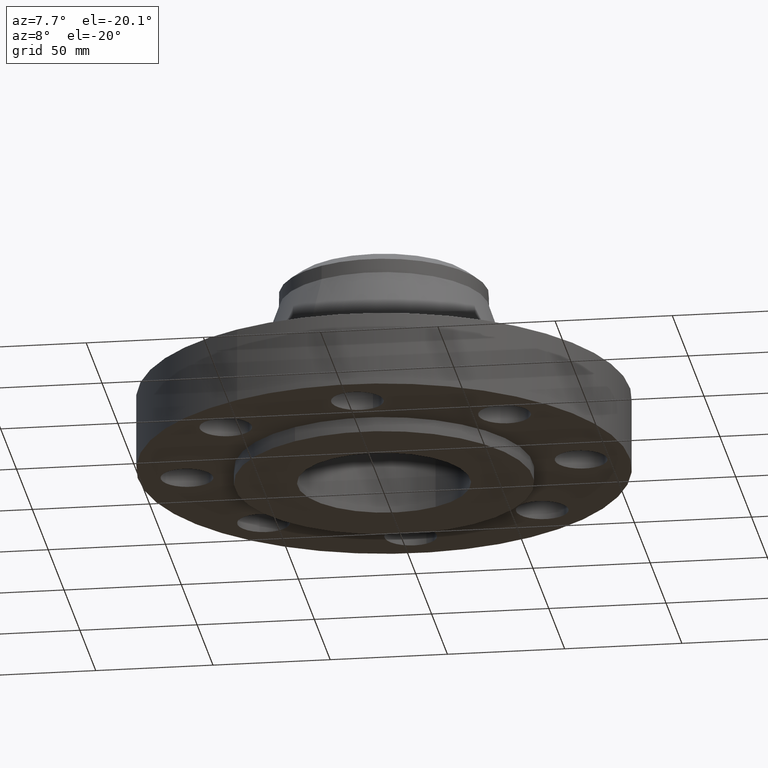
[diagram: clean part render]
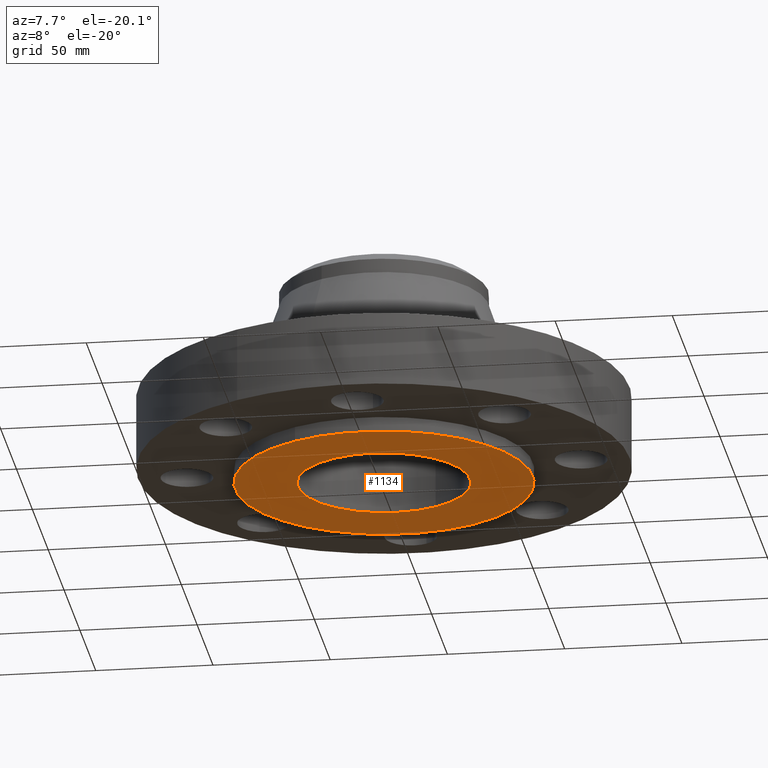
[diagram: same view with one face highlighted and labeled with its STEP entity id]
A machine part, auxiliary view. The second image highlights one B-rep face of the part: STEP entity #1134.
In plain terms, the highlighted planar face has unit normal (0, 0, -1).
Its self-contained STEP definition (entity closure, byte-faithful):
#617=AXIS2_PLACEMENT_3D('Circle Axis2P3D',#615,#616,$) ;
#1110=AXIS2_PLACEMENT_3D('Plane Axis2P3D',#1107,#1108,#1109) ;
#1118=AXIS2_PLACEMENT_3D('Circle Axis2P3D',#1116,#1117,$) ;
#1127=AXIS2_PLACEMENT_3D('Circle Axis2P3D',#1125,#1126,$) ;
#566=CARTESIAN_POINT('Control Point',(1.19856384652,2.19395640473,-0.250000000034)) ;
#567=CARTESIAN_POINT('Control Point',(1.54318971269,2.00568643598,-0.250000000032)) ;
#568=CARTESIAN_POINT('Control Point',(1.85084885694,1.74974933664,-0.250000000031)) ;
#569=CARTESIAN_POINT('Control Point',(2.10376613764,1.43576887778,-0.250000000029)) ;
#570=CARTESIAN_POINT('Control Point',(2.47286138162,0.725557295008,-0.250000000026)) ;
#571=CARTESIAN_POINT('Control Point',(2.54600739901,-0.0714881563803,-0.250000000022)) ;
#572=CARTESIAN_POINT('Control Point',(2.50282921165,-0.472345392258,-0.250000000021)) ;
#573=CARTESIAN_POINT('Control Point',(2.26162353532,-1.23553056844,-0.250000000017)) ;
#574=CARTESIAN_POINT('Control Point',(1.74974933664,-1.85084885694,-0.250000000014)) ;
#575=CARTESIAN_POINT('Control Point',(1.43576887779,-2.10376613764,-0.250000000013)) ;
#576=CARTESIAN_POINT('Control Point',(0.725557295011,-2.47286138162,-0.250000000009)) ;
#577=CARTESIAN_POINT('Control Point',(-0.0714881563776,-2.54600739901,-0.250000000006)) ;
#578=CARTESIAN_POINT('Control Point',(-0.472345392255,-2.50282921165,-0.250000000004)) ;
#579=CARTESIAN_POINT('Control Point',(-0.853937980346,-2.38222637349,-0.250000000003)) ;
#580=CARTESIAN_POINT('Control Point',(-1.19856384652,-2.19395640473,-0.250000000001)) ;
#581=CARTESIAN_POINT('Vertex',(1.19856384649,2.19395640476,-0.250000000001)) ;
#583=CARTESIAN_POINT('Vertex',(-1.19856384649,-2.19395640474,-0.250000000001)) ;
#615=CARTESIAN_POINT('Axis2P3D Location',(0.,0.,-0.250000000034)) ;
#1107=CARTESIAN_POINT('Axis2P3D Location',(0.,1.45000000001,-0.250000000001)) ;
#1116=CARTESIAN_POINT('Axis2P3D Location',(0.,7.06682306723E-012,-0.250000000001)) ;
#1120=CARTESIAN_POINT('Vertex',(0.695167030978,1.27249471477,-0.250000000001)) ;
#1122=CARTESIAN_POINT('Vertex',(-0.695167030981,-1.27249471475,-0.250000000034)) ;
#1125=CARTESIAN_POINT('Axis2P3D Location',(0.,7.06682306723E-012,-0.250000000001)) ;
#616=DIRECTION('Axis2P3D Direction',(0.,0.,-0.0393700787402)) ;
#1108=DIRECTION('Axis2P3D Direction',(0.,0.,-0.0393700787402)) ;
#1109=DIRECTION('Axis2P3D XDirection',(0.0393700787402,0.,0.)) ;
#1117=DIRECTION('Axis2P3D Direction',(0.,0.,-0.0393700787402)) ;
#1126=DIRECTION('Axis2P3D Direction',(0.,0.,-0.0393700787402)) ;
#1113=ORIENTED_EDGE('',*,*,#619,.T.) ;
#1114=ORIENTED_EDGE('',*,*,#585,.T.) ;
#1131=ORIENTED_EDGE('',*,*,#1124,.F.) ;
#1132=ORIENTED_EDGE('',*,*,#1129,.F.) ;
#1133=FACE_BOUND('',#1130,.T.) ;
#1134=ADVANCED_FACE('PartBody',(#1115,#1133),#1111,.T.) ;
#565=B_SPLINE_CURVE_WITH_KNOTS('',5,(#566,#567,#568,#569,#570,#571,#572,#573,#574,#575,#576,#577,#578,#579,#580),.UNSPECIFIED.,.F.,.U.,(6,3,3,3,6),(-99.7455667518,-49.8727833759,0.,49.8727833759,99.7455667518),.UNSPECIFIED.) ;
#618=CIRCLE('generated circle',#617,2.50000000001) ;
#1119=CIRCLE('generated circle',#1118,1.45000000002) ;
#1128=CIRCLE('generated circle',#1127,1.45000000002) ;
#585=EDGE_CURVE('',#582,#584,#565,.T.) ;
#619=EDGE_CURVE('',#584,#582,#618,.T.) ;
#1124=EDGE_CURVE('',#1121,#1123,#1119,.T.) ;
#1129=EDGE_CURVE('',#1123,#1121,#1128,.T.) ;
#1112=EDGE_LOOP('',(#1113,#1114)) ;
#1130=EDGE_LOOP('',(#1131,#1132)) ;
#1115=FACE_OUTER_BOUND('',#1112,.T.) ;
#1111=PLANE('',#1110) ;
#582=VERTEX_POINT('',#581) ;
#584=VERTEX_POINT('',#583) ;
#1121=VERTEX_POINT('',#1120) ;
#1123=VERTEX_POINT('',#1122) ;